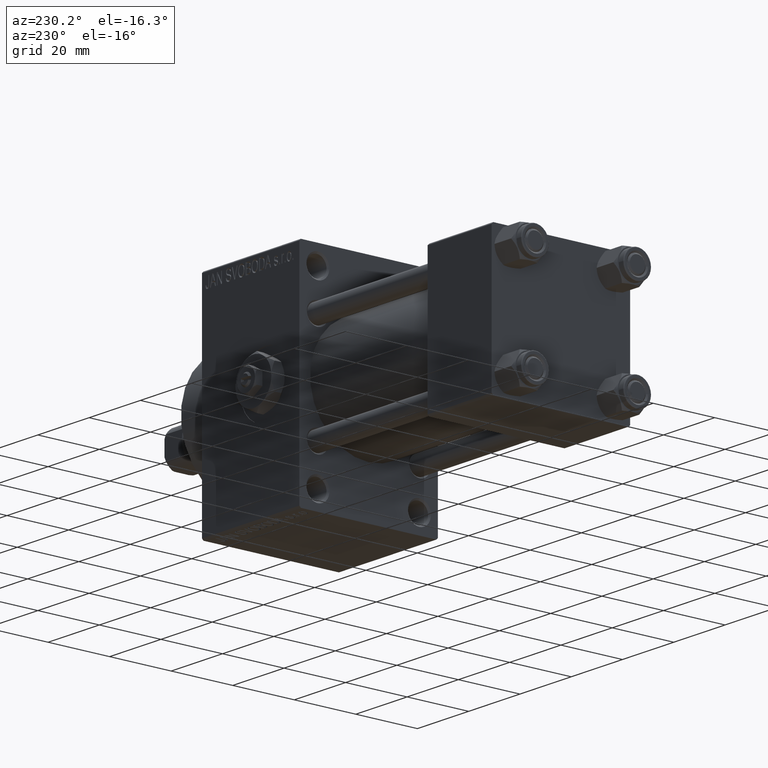
[diagram: clean part render]
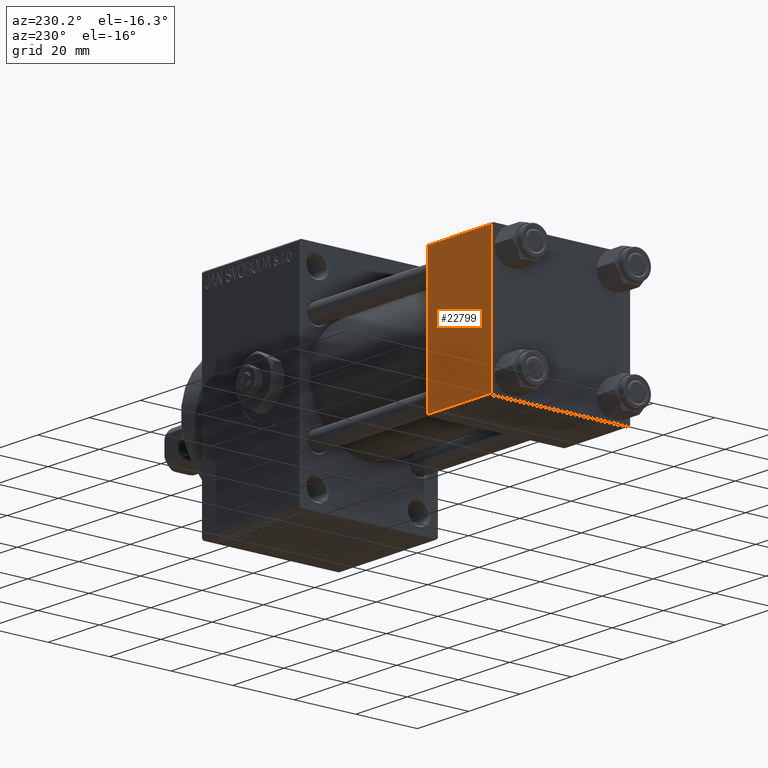
[diagram: same view with one face highlighted and labeled with its STEP entity id]
A machine part, auxiliary view. The second image highlights one B-rep face of the part: STEP entity #22799.
In plain terms, the highlighted planar face has unit normal (0, 1, 0).
Its self-contained STEP definition (entity closure, byte-faithful):
#238 = DIRECTION ( 'NONE',  ( -0.000000000000000000, 1.000000000000000000, 0.000000000000000000 ) ) ;
#3834 = VECTOR ( 'NONE', #37191, 1000.000000000000000 ) ;
#5342 = EDGE_LOOP ( 'NONE', ( #35086, #46714, #42032, #35766 ) ) ;
#5442 = LINE ( 'NONE', #43289, #19439 ) ;
#7439 = DIRECTION ( 'NONE',  ( 0.000000000000000000, 0.000000000000000000, -1.000000000000000000 ) ) ;
#7944 = DIRECTION ( 'NONE',  ( 1.000000000000000000, 0.000000000000000000, 0.000000000000000000 ) ) ;
#8288 = VERTEX_POINT ( 'NONE', #39900 ) ;
#9545 = VERTEX_POINT ( 'NONE', #15498 ) ;
#10085 = PLANE ( 'NONE',  #13603 ) ;
#10169 = CARTESIAN_POINT ( 'NONE',  ( 25.00000000000000000, 22.50000000000000000, -21.99999999999998224 ) ) ;
#13023 = CARTESIAN_POINT ( 'NONE',  ( 25.00000000000000000, 22.50000000000000000, -21.99999999999996803 ) ) ;
#13603 = AXIS2_PLACEMENT_3D ( 'NONE', #33422, #238, #45196 ) ;
#14096 = CARTESIAN_POINT ( 'NONE',  ( 0.000000000000000000, 22.50000000000000000, 21.99999999999999645 ) ) ;
#14101 = LINE ( 'NONE', #10169, #3834 ) ;
#14806 = CARTESIAN_POINT ( 'NONE',  ( 25.00000000000000000, 22.50000000000000000, 22.50000000000000355 ) ) ;
#15498 = CARTESIAN_POINT ( 'NONE',  ( 25.00000000000000000, 22.50000000000000000, 21.99999999999999645 ) ) ;
#19439 = VECTOR ( 'NONE', #43037, 1000.000000000000000 ) ;
#19722 = CARTESIAN_POINT ( 'NONE',  ( 25.00000000000000000, 22.50000000000000000, 21.99999999999999645 ) ) ;
#21338 = VECTOR ( 'NONE', #7944, 1000.000000000000000 ) ;
#22799 = ADVANCED_FACE ( 'NONE', ( #43745 ), #10085, .T. ) ;
#33422 = CARTESIAN_POINT ( 'NONE',  ( 25.00000000000000000, 22.50000000000000000, 22.50000000000000355 ) ) ;
#34412 = VERTEX_POINT ( 'NONE', #14096 ) ;
#34480 = LINE ( 'NONE', #19722, #21338 ) ;
#34670 = EDGE_CURVE ( 'NONE', #9545, #48410, #40866, .T. ) ;
#35086 = ORIENTED_EDGE ( 'NONE', *, *, #34670, .T. ) ;
#35659 = EDGE_CURVE ( 'NONE', #48410, #8288, #14101, .T. ) ;
#35766 = ORIENTED_EDGE ( 'NONE', *, *, #45766, .T. ) ;
#36757 = EDGE_CURVE ( 'NONE', #34412, #8288, #5442, .T. ) ;
#37191 = DIRECTION ( 'NONE',  ( -1.000000000000000000, 0.000000000000000000, 0.000000000000000000 ) ) ;
#38979 = VECTOR ( 'NONE', #7439, 1000.000000000000000 ) ;
#39900 = CARTESIAN_POINT ( 'NONE',  ( 0.000000000000000000, 22.50000000000000000, -21.99999999999996803 ) ) ;
#40866 = LINE ( 'NONE', #14806, #38979 ) ;
#42032 = ORIENTED_EDGE ( 'NONE', *, *, #36757, .F. ) ;
#43037 = DIRECTION ( 'NONE',  ( 0.000000000000000000, 0.000000000000000000, -1.000000000000000000 ) ) ;
#43289 = CARTESIAN_POINT ( 'NONE',  ( 0.000000000000000000, 22.50000000000000000, 22.50000000000000355 ) ) ;
#43745 = FACE_OUTER_BOUND ( 'NONE', #5342, .T. ) ;
#45196 = DIRECTION ( 'NONE',  ( 0.000000000000000000, -0.000000000000000000, 1.000000000000000000 ) ) ;
#45766 = EDGE_CURVE ( 'NONE', #34412, #9545, #34480, .T. ) ;
#46714 = ORIENTED_EDGE ( 'NONE', *, *, #35659, .T. ) ;
#48410 = VERTEX_POINT ( 'NONE', #13023 ) ;